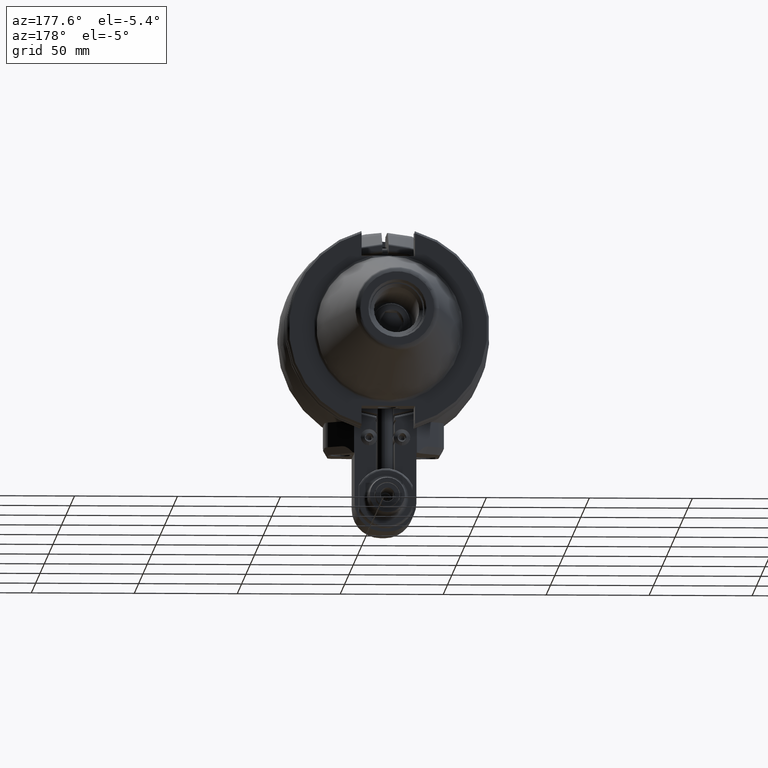
[diagram: clean part render]
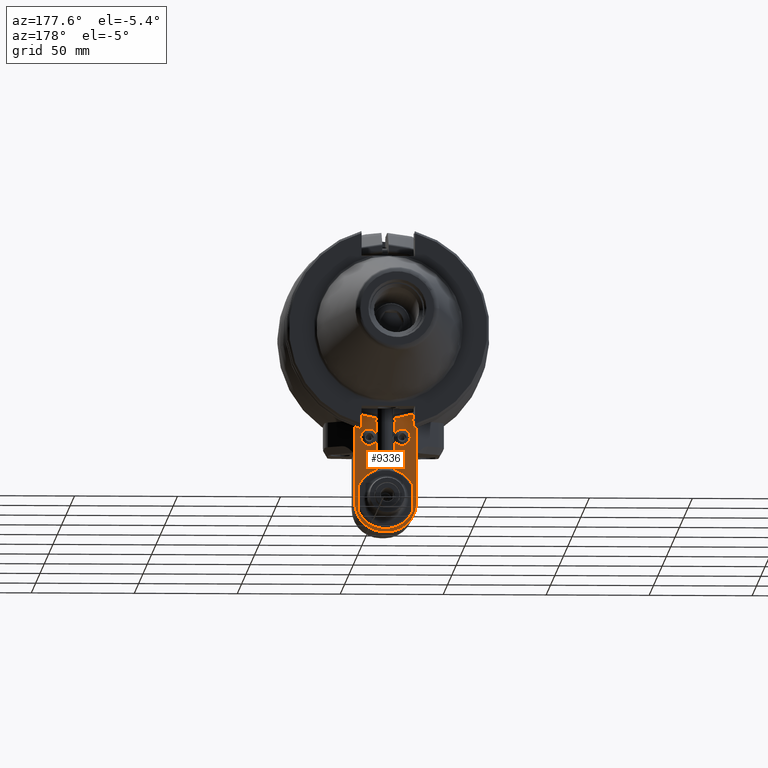
[diagram: same view with one face highlighted and labeled with its STEP entity id]
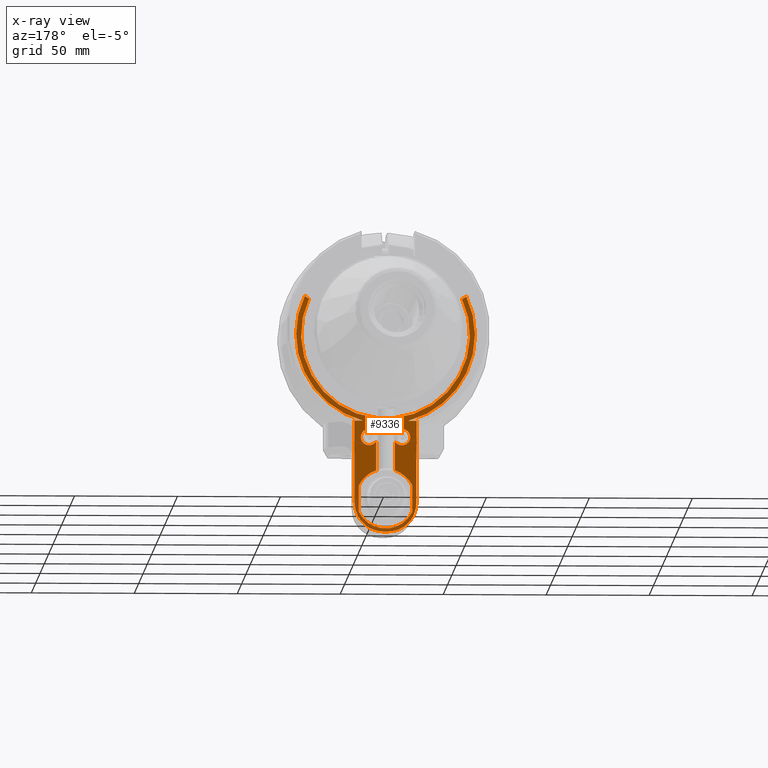
[diagram: x-ray of the same camera — body ghosted, the highlighted face saturated]
A machine part, auxiliary view. The second image highlights one B-rep face of the part: STEP entity #9336.
The next image is the same camera in x-ray: the body ghosted, the highlighted face saturated — about 0% of this face is hidden behind the body in this view.
In plain terms, the highlighted planar face has unit normal (0, 1, 0).
Its self-contained STEP definition (entity closure, byte-faithful):
#814=CIRCLE('',#10175,0.570866141732283);
#815=CIRCLE('',#10176,0.570866141732283);
#816=CIRCLE('',#10177,0.570866141732283);
#817=CIRCLE('',#10178,0.15748031496063);
#818=CIRCLE('',#10179,0.0393700787401575);
#819=CIRCLE('',#10180,0.0393700787401575);
#820=CIRCLE('',#10181,1.61417322834646);
#821=CIRCLE('',#10182,1.70955313900827);
#822=CIRCLE('',#10183,0.551181102362205);
#823=CIRCLE('',#10184,0.551181102362205);
#824=CIRCLE('',#10185,1.70955313900827);
#825=CIRCLE('',#10186,1.61417322834646);
#826=CIRCLE('',#10187,0.0393700787401575);
#827=CIRCLE('',#10188,0.0393700787401575);
#828=CIRCLE('',#10189,0.15748031496063);
#1360=FACE_OUTER_BOUND('',#1982,.T.);
#1982=EDGE_LOOP('',(#7002,#7003,#7004,#7005,#7006,#7007,#7008,#7009,#7010,
#7011,#7012,#7013,#7014,#7015,#7016,#7017,#7018,#7019,#7020,#7021,#7022,
#7023,#7024,#7025,#7026,#7027,#7028,#7029,#7030,#7031,#7032,#7033,#7034,
#7035,#7036,#7037,#7038,#7039));
#2620=LINE('',#15344,#3301);
#2623=LINE('',#15417,#3304);
#2624=LINE('',#15422,#3305);
#2625=LINE('',#15424,#3306);
#2626=LINE('',#15428,#3307);
#2627=LINE('',#15430,#3308);
#2628=LINE('',#15436,#3309);
#2629=LINE('',#15440,#3310);
#2630=LINE('',#15444,#3311);
#2631=LINE('',#15446,#3312);
#2632=LINE('',#15448,#3313);
#2633=LINE('',#15450,#3314);
#2634=LINE('',#15454,#3315);
#2635=LINE('',#15458,#3316);
#2636=LINE('',#15460,#3317);
#2637=LINE('',#15462,#3318);
#2638=LINE('',#15464,#3319);
#2639=LINE('',#15468,#3320);
#2640=LINE('',#15472,#3321);
#2641=LINE('',#15478,#3322);
#2642=LINE('',#15480,#3323);
#2643=LINE('',#15484,#3324);
#2644=LINE('',#15485,#3325);
#3301=VECTOR('',#11958,0.505717818057874);
#3304=VECTOR('',#11965,0.505717818057874);
#3305=VECTOR('',#11970,0.539998080626378);
#3306=VECTOR('',#11971,0.0148622441260118);
#3307=VECTOR('',#11974,0.0148622441260158);
#3308=VECTOR('',#11975,0.177165354330709);
#3309=VECTOR('',#11980,0.00975194690716535);
#3310=VECTOR('',#11983,0.0957049674055958);
#3311=VECTOR('',#11986,0.160981971237047);
#3312=VECTOR('',#11987,0.610236220472441);
#3313=VECTOR('',#11988,0.00444284835671653);
#3314=VECTOR('',#11989,0.964566929133858);
#3315=VECTOR('',#11992,0.078740157480315);
#3316=VECTOR('',#11995,0.964566929133858);
#3317=VECTOR('',#11996,0.00444284835671653);
#3318=VECTOR('',#11997,0.610236220472441);
#3319=VECTOR('',#11998,0.160981971237047);
#3320=VECTOR('',#12001,0.0957052865729515);
#3321=VECTOR('',#12004,0.00975194690717323);
#3322=VECTOR('',#12009,0.177165354330709);
#3323=VECTOR('',#12010,0.0148622441260158);
#3324=VECTOR('',#12013,0.0148622441260118);
#3325=VECTOR('',#12014,0.539998080626378);
#4075=VERTEX_POINT('',#15342);
#4076=VERTEX_POINT('',#15343);
#4078=VERTEX_POINT('',#15413);
#4079=VERTEX_POINT('',#15414);
#4080=VERTEX_POINT('',#15416);
#4081=VERTEX_POINT('',#15419);
#4082=VERTEX_POINT('',#15421);
#4083=VERTEX_POINT('',#15423);
#4084=VERTEX_POINT('',#15425);
#4085=VERTEX_POINT('',#15427);
#4086=VERTEX_POINT('',#15429);
#4087=VERTEX_POINT('',#15431);
#4088=VERTEX_POINT('',#15433);
#4089=VERTEX_POINT('',#15435);
#4090=VERTEX_POINT('',#15437);
#4091=VERTEX_POINT('',#15439);
#4092=VERTEX_POINT('',#15441);
#4093=VERTEX_POINT('',#15443);
#4094=VERTEX_POINT('',#15445);
#4095=VERTEX_POINT('',#15447);
#4096=VERTEX_POINT('',#15449);
#4097=VERTEX_POINT('',#15451);
#4098=VERTEX_POINT('',#15453);
#4099=VERTEX_POINT('',#15455);
#4100=VERTEX_POINT('',#15457);
#4101=VERTEX_POINT('',#15459);
#4102=VERTEX_POINT('',#15461);
#4103=VERTEX_POINT('',#15463);
#4104=VERTEX_POINT('',#15465);
#4105=VERTEX_POINT('',#15467);
#4106=VERTEX_POINT('',#15469);
#4107=VERTEX_POINT('',#15471);
#4108=VERTEX_POINT('',#15473);
#4109=VERTEX_POINT('',#15475);
#4110=VERTEX_POINT('',#15477);
#4111=VERTEX_POINT('',#15479);
#4112=VERTEX_POINT('',#15481);
#4113=VERTEX_POINT('',#15483);
#5145=EDGE_CURVE('',#4075,#4076,#2620,.T.);
#5149=EDGE_CURVE('',#4078,#4079,#814,.T.);
#5150=EDGE_CURVE('',#4080,#4078,#2623,.T.);
#5151=EDGE_CURVE('',#4076,#4080,#815,.T.);
#5152=EDGE_CURVE('',#4081,#4075,#816,.T.);
#5153=EDGE_CURVE('',#4081,#4082,#2624,.T.);
#5154=EDGE_CURVE('',#4083,#4082,#2625,.T.);
#5155=EDGE_CURVE('',#4083,#4084,#817,.T.);
#5156=EDGE_CURVE('',#4085,#4084,#2626,.T.);
#5157=EDGE_CURVE('',#4085,#4086,#2627,.T.);
#5158=EDGE_CURVE('',#4086,#4087,#818,.T.);
#5159=EDGE_CURVE('',#4087,#4088,#819,.T.);
#5160=EDGE_CURVE('',#4089,#4088,#2628,.T.);
#5161=EDGE_CURVE('',#4089,#4090,#820,.T.);
#5162=EDGE_CURVE('',#4090,#4091,#2629,.T.);
#5163=EDGE_CURVE('',#4091,#4092,#821,.T.);
#5164=EDGE_CURVE('',#4092,#4093,#2630,.T.);
#5165=EDGE_CURVE('',#4094,#4093,#2631,.T.);
#5166=EDGE_CURVE('',#4094,#4095,#2632,.T.);
#5167=EDGE_CURVE('',#4095,#4096,#2633,.T.);
#5168=EDGE_CURVE('',#4096,#4097,#822,.T.);
#5169=EDGE_CURVE('',#4098,#4097,#2634,.T.);
#5170=EDGE_CURVE('',#4098,#4099,#823,.T.);
#5171=EDGE_CURVE('',#4099,#4100,#2635,.T.);
#5172=EDGE_CURVE('',#4101,#4100,#2636,.T.);
#5173=EDGE_CURVE('',#4102,#4101,#2637,.T.);
#5174=EDGE_CURVE('',#4102,#4103,#2638,.T.);
#5175=EDGE_CURVE('',#4103,#4104,#824,.T.);
#5176=EDGE_CURVE('',#4104,#4105,#2639,.T.);
#5177=EDGE_CURVE('',#4105,#4106,#825,.T.);
#5178=EDGE_CURVE('',#4106,#4107,#2640,.T.);
#5179=EDGE_CURVE('',#4107,#4108,#826,.T.);
#5180=EDGE_CURVE('',#4108,#4109,#827,.T.);
#5181=EDGE_CURVE('',#4109,#4110,#2641,.T.);
#5182=EDGE_CURVE('',#4111,#4110,#2642,.T.);
#5183=EDGE_CURVE('',#4111,#4112,#828,.T.);
#5184=EDGE_CURVE('',#4113,#4112,#2643,.T.);
#5185=EDGE_CURVE('',#4113,#4079,#2644,.T.);
#7002=ORIENTED_EDGE('',*,*,#5149,.F.);
#7003=ORIENTED_EDGE('',*,*,#5150,.F.);
#7004=ORIENTED_EDGE('',*,*,#5151,.F.);
#7005=ORIENTED_EDGE('',*,*,#5145,.F.);
#7006=ORIENTED_EDGE('',*,*,#5152,.F.);
#7007=ORIENTED_EDGE('',*,*,#5153,.T.);
#7008=ORIENTED_EDGE('',*,*,#5154,.F.);
#7009=ORIENTED_EDGE('',*,*,#5155,.T.);
#7010=ORIENTED_EDGE('',*,*,#5156,.F.);
#7011=ORIENTED_EDGE('',*,*,#5157,.T.);
#7012=ORIENTED_EDGE('',*,*,#5158,.T.);
#7013=ORIENTED_EDGE('',*,*,#5159,.T.);
#7014=ORIENTED_EDGE('',*,*,#5160,.F.);
#7015=ORIENTED_EDGE('',*,*,#5161,.T.);
#7016=ORIENTED_EDGE('',*,*,#5162,.T.);
#7017=ORIENTED_EDGE('',*,*,#5163,.T.);
#7018=ORIENTED_EDGE('',*,*,#5164,.T.);
#7019=ORIENTED_EDGE('',*,*,#5165,.F.);
#7020=ORIENTED_EDGE('',*,*,#5166,.T.);
#7021=ORIENTED_EDGE('',*,*,#5167,.T.);
#7022=ORIENTED_EDGE('',*,*,#5168,.T.);
#7023=ORIENTED_EDGE('',*,*,#5169,.F.);
#7024=ORIENTED_EDGE('',*,*,#5170,.T.);
#7025=ORIENTED_EDGE('',*,*,#5171,.T.);
#7026=ORIENTED_EDGE('',*,*,#5172,.F.);
#7027=ORIENTED_EDGE('',*,*,#5173,.F.);
#7028=ORIENTED_EDGE('',*,*,#5174,.T.);
#7029=ORIENTED_EDGE('',*,*,#5175,.T.);
#7030=ORIENTED_EDGE('',*,*,#5176,.T.);
#7031=ORIENTED_EDGE('',*,*,#5177,.T.);
#7032=ORIENTED_EDGE('',*,*,#5178,.T.);
#7033=ORIENTED_EDGE('',*,*,#5179,.T.);
#7034=ORIENTED_EDGE('',*,*,#5180,.T.);
#7035=ORIENTED_EDGE('',*,*,#5181,.T.);
#7036=ORIENTED_EDGE('',*,*,#5182,.F.);
#7037=ORIENTED_EDGE('',*,*,#5183,.T.);
#7038=ORIENTED_EDGE('',*,*,#5184,.F.);
#7039=ORIENTED_EDGE('',*,*,#5185,.T.);
#8949=PLANE('',#10174);
#9336=ADVANCED_FACE('',(#1360),#8949,.T.);
#10174=AXIS2_PLACEMENT_3D('',#15412,#11961,#11962);
#10175=AXIS2_PLACEMENT_3D('',#15415,#11963,#11964);
#10176=AXIS2_PLACEMENT_3D('',#15418,#11966,#11967);
#10177=AXIS2_PLACEMENT_3D('',#15420,#11968,#11969);
#10178=AXIS2_PLACEMENT_3D('',#15426,#11972,#11973);
#10179=AXIS2_PLACEMENT_3D('',#15432,#11976,#11977);
#10180=AXIS2_PLACEMENT_3D('',#15434,#11978,#11979);
#10181=AXIS2_PLACEMENT_3D('',#15438,#11981,#11982);
#10182=AXIS2_PLACEMENT_3D('',#15442,#11984,#11985);
#10183=AXIS2_PLACEMENT_3D('',#15452,#11990,#11991);
#10184=AXIS2_PLACEMENT_3D('',#15456,#11993,#11994);
#10185=AXIS2_PLACEMENT_3D('',#15466,#11999,#12000);
#10186=AXIS2_PLACEMENT_3D('',#15470,#12002,#12003);
#10187=AXIS2_PLACEMENT_3D('',#15474,#12005,#12006);
#10188=AXIS2_PLACEMENT_3D('',#15476,#12007,#12008);
#10189=AXIS2_PLACEMENT_3D('',#15482,#12011,#12012);
#11958=DIRECTION('',(0.,0.,-1.));
#11961=DIRECTION('center_axis',(0.,1.,0.));
#11962=DIRECTION('ref_axis',(0.,0.,1.));
#11963=DIRECTION('center_axis',(0.,1.,0.));
#11964=DIRECTION('ref_axis',(-0.896551724137936,0.,0.442939054436718));
#11965=DIRECTION('',(0.,0.,1.));
#11966=DIRECTION('center_axis',(0.,1.,0.));
#11967=DIRECTION('ref_axis',(0.896551724137936,0.,-0.442939054436718));
#11968=DIRECTION('center_axis',(0.,1.,0.));
#11969=DIRECTION('ref_axis',(0.310344827586198,0.,0.950624051868294));
#11970=DIRECTION('',(0.,-4.351545782356E-14,1.));
#11971=DIRECTION('',(-1.,-1.562248760745E-12,0.));
#11972=DIRECTION('center_axis',(0.,-1.,0.));
#11973=DIRECTION('ref_axis',(-0.7806247497998,0.,-0.625));
#11974=DIRECTION('',(1.,1.58107103497E-12,0.));
#11975=DIRECTION('',(0.,0.,1.));
#11976=DIRECTION('center_axis',(0.,1.,0.));
#11977=DIRECTION('ref_axis',(-1.,0.,-1.42108547152E-14));
#11978=DIRECTION('center_axis',(0.,1.,0.));
#11979=DIRECTION('ref_axis',(0.,0.,-1.));
#11980=DIRECTION('',(-3.585710079411E-14,0.,-1.));
#11981=DIRECTION('center_axis',(0.,-1.,0.));
#11982=DIRECTION('ref_axis',(0.109756097561003,0.,-0.993958549964826));
#11983=DIRECTION('',(0.866025403777353,0.,0.500000000012273));
#11984=DIRECTION('center_axis',(0.,1.,0.));
#11985=DIRECTION('ref_axis',(0.90350914504947,0.,0.428568809891686));
#11986=DIRECTION('',(1.,0.,0.));
#11987=DIRECTION('',(0.,0.,1.));
#11988=DIRECTION('',(-1.,-5.351973109977E-12,0.));
#11989=DIRECTION('',(0.,0.,-1.));
#11990=DIRECTION('center_axis',(0.,1.,0.));
#11991=DIRECTION('ref_axis',(1.,0.,0.));
#11992=DIRECTION('',(1.,0.,0.));
#11993=DIRECTION('center_axis',(0.,1.,0.));
#11994=DIRECTION('ref_axis',(0.,0.,-1.));
#11995=DIRECTION('',(0.,0.,1.));
#11996=DIRECTION('',(1.,-5.226044330919E-12,0.));
#11997=DIRECTION('',(0.,0.,-1.));
#11998=DIRECTION('',(1.,0.,0.));
#11999=DIRECTION('center_axis',(0.,1.,0.));
#12000=DIRECTION('ref_axis',(-0.253874564246497,0.,-0.967237150666088));
#12001=DIRECTION('',(0.866025403777911,0.,-0.500000000011306));
#12002=DIRECTION('center_axis',(0.,-1.,0.));
#12003=DIRECTION('ref_axis',(-0.905547054761271,0.,0.424245838651586));
#12004=DIRECTION('',(0.,0.,-1.));
#12005=DIRECTION('center_axis',(0.,1.,0.));
#12006=DIRECTION('ref_axis',(1.,0.,0.));
#12007=DIRECTION('center_axis',(0.,1.,0.));
#12008=DIRECTION('ref_axis',(0.,0.,1.));
#12009=DIRECTION('',(0.,0.,-1.));
#12010=DIRECTION('',(1.,-1.562248760745E-12,-3.764454845168E-14));
#12011=DIRECTION('center_axis',(0.,-1.,0.));
#12012=DIRECTION('ref_axis',(0.7806247497998,0.,0.625));
#12013=DIRECTION('',(-1.,1.581071034971E-12,0.));
#12014=DIRECTION('',(0.,4.2997416659E-14,-1.));
#15342=CARTESIAN_POINT('',(0.511811023622047,1.55511811023622,-2.89674739018386));
#15343=CARTESIAN_POINT('',(0.511811023622047,1.55511811023622,-3.40246520824134));
#15344=CARTESIAN_POINT('',(0.511811023622047,1.55511811023622,-2.89674739018386));
#15412=CARTESIAN_POINT('Origin',(0.,1.55511811023622,1.60433070866142));
#15413=CARTESIAN_POINT('',(-0.511811023622047,1.55511811023622,-2.89674739018386));
#15414=CARTESIAN_POINT('',(-0.177165354330709,1.55511811023622,-2.60692721448465));
#15415=CARTESIAN_POINT('Origin',(0.,1.55511811023622,-3.1496062992126));
#15416=CARTESIAN_POINT('',(-0.511811023622047,1.55511811023622,-3.40246520824134));
#15417=CARTESIAN_POINT('',(-0.511811023622047,1.55511811023622,-3.40246520824134));
#15418=CARTESIAN_POINT('Origin',(0.,1.55511811023622,-3.1496062992126));
#15419=CARTESIAN_POINT('',(0.177165354330709,1.55511811023622,-2.60692721448465));
#15420=CARTESIAN_POINT('Origin',(0.,1.55511811023622,-3.1496062992126));
#15421=CARTESIAN_POINT('',(0.177165354330709,1.55511811023622,-2.06692913385827));
#15422=CARTESIAN_POINT('',(0.177165354330709,1.55511811023622,-2.60692721448465));
#15423=CARTESIAN_POINT('',(0.192027598456732,1.55511811023622,-2.06692913385827));
#15424=CARTESIAN_POINT('',(0.192027598456732,1.55511811023622,-2.06692913385827));
#15425=CARTESIAN_POINT('',(0.192027598456732,1.55511811023622,-1.87007874015748));
#15426=CARTESIAN_POINT('Origin',(0.31496062992126,1.55511811023622,-1.96850393700787));
#15427=CARTESIAN_POINT('',(0.177165354330709,1.55511811023622,-1.87007874015748));
#15428=CARTESIAN_POINT('',(0.177165354330709,1.55511811023622,-1.87007874015748));
#15429=CARTESIAN_POINT('',(0.177165354330709,1.55511811023622,-1.69291338582677));
#15430=CARTESIAN_POINT('',(0.177165354330709,1.55511811023622,-1.87007874015748));
#15431=CARTESIAN_POINT('',(0.216535433070866,1.55511811023622,-1.65354330708661));
#15432=CARTESIAN_POINT('Origin',(0.216535433070866,1.55511811023622,-1.69291338582677));
#15433=CARTESIAN_POINT('',(0.177165354330709,1.55511811023622,-1.61417322834646));
#15434=CARTESIAN_POINT('Origin',(0.216535433070866,1.55511811023622,-1.61417322834646));
#15435=CARTESIAN_POINT('',(0.177165354330709,1.55511811023622,-1.60442128143937));
#15436=CARTESIAN_POINT('',(0.177165354330709,1.55511811023622,-1.60442128143937));
#15437=CARTESIAN_POINT('',(1.46170981280354,1.55511811023622,0.684806274988583));
#15438=CARTESIAN_POINT('Origin',(0.,1.55511811023622,0.));
#15439=CARTESIAN_POINT('',(1.54459689504322,1.55511811023543,0.732661154228782));
#15440=CARTESIAN_POINT('',(1.46170981280354,1.55511811023622,0.684806274988583));
#15441=CARTESIAN_POINT('',(0.434012058222047,1.55511811023622,-1.65354330708661));
#15442=CARTESIAN_POINT('Origin',(0.,1.55511811023622,0.));
#15443=CARTESIAN_POINT('',(0.594994029459055,1.55511811023622,-1.65354330708661));
#15444=CARTESIAN_POINT('',(0.434012058222047,1.55511811023622,-1.65354330708661));
#15445=CARTESIAN_POINT('',(0.594994029459055,1.55511811023622,-2.26377952755906));
#15446=CARTESIAN_POINT('',(0.594994029459055,1.55511811023622,-2.26377952755906));
#15447=CARTESIAN_POINT('',(0.590551181102362,1.55511811023622,-2.26377952755906));
#15448=CARTESIAN_POINT('',(0.594994029459055,1.55511811023622,-2.26377952755906));
#15449=CARTESIAN_POINT('',(0.590551181102362,1.55511811023622,-3.22834645669291));
#15450=CARTESIAN_POINT('',(0.590551181102362,1.55511811023622,-2.26377952755906));
#15451=CARTESIAN_POINT('',(0.0393700787401575,1.55511811023622,-3.77952755905512));
#15452=CARTESIAN_POINT('Origin',(0.0393700787401575,1.55511811023622,-3.22834645669291));
#15453=CARTESIAN_POINT('',(-0.0393700787401575,1.55511811023622,-3.77952755905512));
#15454=CARTESIAN_POINT('',(-0.0393700787401575,1.55511811023622,-3.77952755905512));
#15455=CARTESIAN_POINT('',(-0.590551181102362,1.55511811023622,-3.22834645669291));
#15456=CARTESIAN_POINT('Origin',(-0.0393700787401575,1.55511811023622,-3.22834645669291));
#15457=CARTESIAN_POINT('',(-0.590551181102362,1.55511811023622,-2.26377952755906));
#15458=CARTESIAN_POINT('',(-0.590551181102362,1.55511811023622,-3.22834645669291));
#15459=CARTESIAN_POINT('',(-0.594994029459055,1.55511811023622,-2.26377952755906));
#15460=CARTESIAN_POINT('',(-0.594994029459055,1.55511811023622,-2.26377952755906));
#15461=CARTESIAN_POINT('',(-0.594994029459055,1.55511811023622,-1.65354330708661));
#15462=CARTESIAN_POINT('',(-0.594994029459055,1.55511811023622,-1.65354330708661));
#15463=CARTESIAN_POINT('',(-0.434012058222047,1.55511811023622,-1.65354330708661));
#15464=CARTESIAN_POINT('',(-0.594994029459055,1.55511811023622,-1.65354330708661));
#15465=CARTESIAN_POINT('',(-1.54459689504302,1.55511811023549,0.732661154229206));
#15466=CARTESIAN_POINT('Origin',(0.,1.55511811023622,0.));
#15467=CARTESIAN_POINT('',(-1.46170981280354,1.55511811023622,0.684806274988583));
#15468=CARTESIAN_POINT('',(-1.54459302225157,1.55511811023622,0.732658918276378));
#15469=CARTESIAN_POINT('',(-0.177165354330709,1.55511811023622,-1.60442128143937));
#15470=CARTESIAN_POINT('Origin',(0.,1.55511811023622,0.));
#15471=CARTESIAN_POINT('',(-0.177165354330709,1.55511811023622,-1.61417322834646));
#15472=CARTESIAN_POINT('',(-0.177165354330709,1.55511811023622,-1.60442128143937));
#15473=CARTESIAN_POINT('',(-0.216535433070866,1.55511811023622,-1.65354330708661));
#15474=CARTESIAN_POINT('Origin',(-0.216535433070866,1.55511811023622,-1.61417322834646));
#15475=CARTESIAN_POINT('',(-0.177165354330709,1.55511811023622,-1.69291338582677));
#15476=CARTESIAN_POINT('Origin',(-0.216535433070866,1.55511811023622,-1.69291338582677));
#15477=CARTESIAN_POINT('',(-0.177165354330709,1.55511811023622,-1.87007874015748));
#15478=CARTESIAN_POINT('',(-0.177165354330709,1.55511811023622,-1.69291338582677));
#15479=CARTESIAN_POINT('',(-0.192027598456732,1.55511811023622,-1.87007874015748));
#15480=CARTESIAN_POINT('',(-0.192027598456732,1.55511811023622,-1.87007874015748));
#15481=CARTESIAN_POINT('',(-0.192027598456732,1.55511811023622,-2.06692913385827));
#15482=CARTESIAN_POINT('Origin',(-0.31496062992126,1.55511811023622,-1.96850393700787));
#15483=CARTESIAN_POINT('',(-0.177165354330709,1.55511811023622,-2.06692913385827));
#15484=CARTESIAN_POINT('',(-0.177165354330709,1.55511811023622,-2.06692913385827));
#15485=CARTESIAN_POINT('',(-0.177165354330709,1.55511811023622,-2.06692913385827));